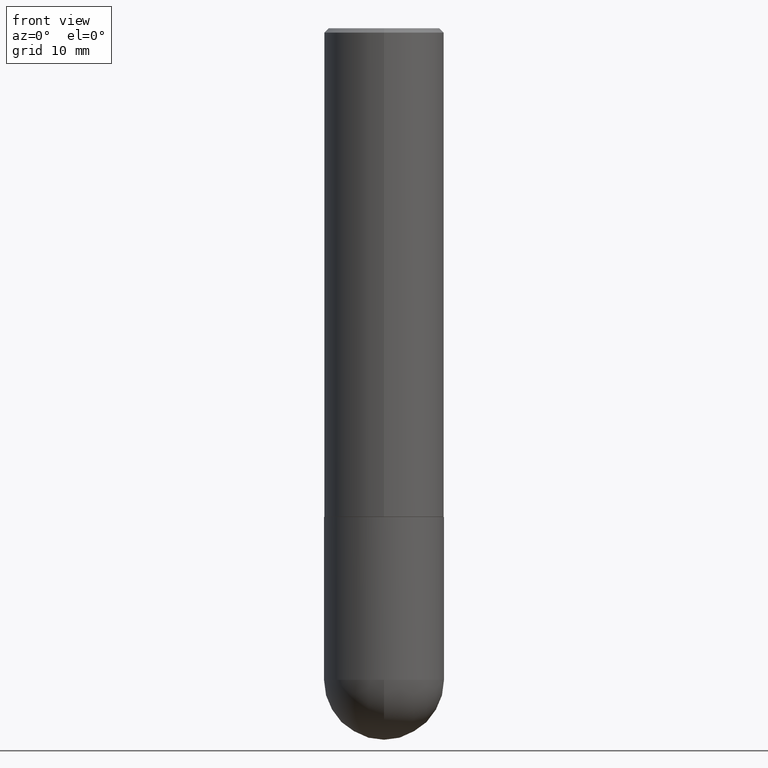
[diagram: clean part render]
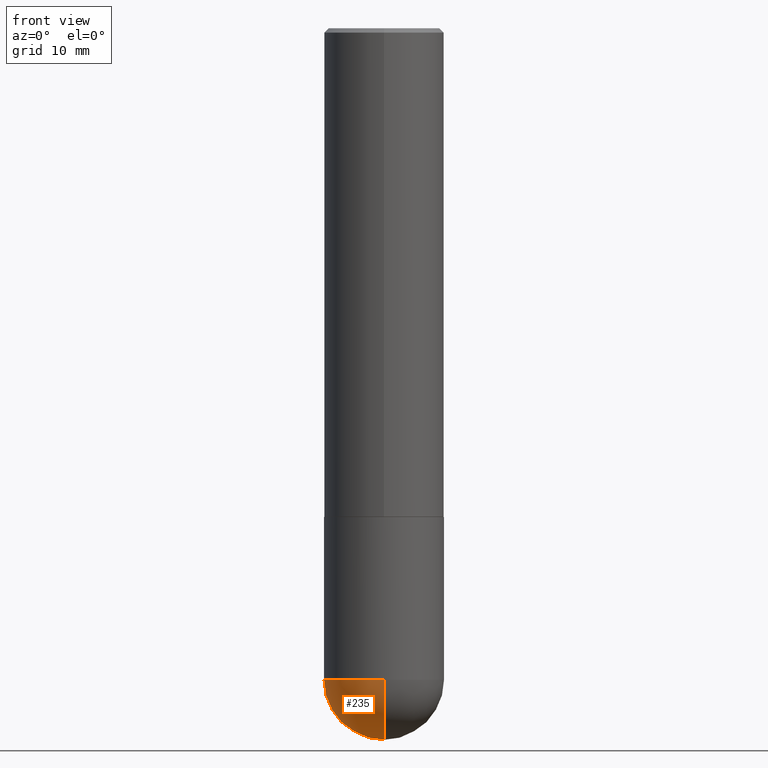
[diagram: same view with one face highlighted and labeled with its STEP entity id]
A machine part, front view. The second image highlights one B-rep face of the part: STEP entity #235.
In plain terms, the highlighted spherical surface has radius 7.0002 mm.
Its self-contained STEP definition (entity closure, byte-faithful):
#11 = FACE_OUTER_BOUND ( 'NONE', #186, .T. ) ;
#14 = DIRECTION ( 'NONE',  ( 1.000000000000000000, -6.982962677686265922E-15, 4.883557194083112340E-29 ) ) ;
#35 = ORIENTED_EDGE ( 'NONE', *, *, #64, .T. ) ;
#40 = CARTESIAN_POINT ( 'NONE',  ( 6.985967437072660867E-29, -1.092104368209262610E-14, -2.992100000000000204 ) ) ;
#45 = CARTESIAN_POINT ( 'NONE',  ( 7.671722831522178326E-29, -1.186642030618554829E-14, -3.267700000000000049 ) ) ;
#48 = CIRCLE ( 'NONE', #262, 0.2756000000000000671 ) ;
#61 = EDGE_CURVE ( 'NONE', #319, #368, #157, .T. ) ;
#64 = EDGE_CURVE ( 'NONE', #407, #368, #299, .T. ) ;
#74 = SPHERICAL_SURFACE ( 'NONE', #168, 0.2756000000000003447 ) ;
#84 = ORIENTED_EDGE ( 'NONE', *, *, #340, .F. ) ;
#104 = CARTESIAN_POINT ( 'NONE',  ( 6.985967437072660867E-29, -1.092104368209262610E-14, -2.992100000000000204 ) ) ;
#106 = DIRECTION ( 'NONE',  ( -2.445468806185136597E-29, 3.491481338843145583E-15, 1.000000000000000000 ) ) ;
#110 = CARTESIAN_POINT ( 'NONE',  ( 6.985967437072660867E-29, -1.092104368209262610E-14, -2.992100000000000204 ) ) ;
#112 = DIRECTION ( 'NONE',  ( 6.982962677686265922E-15, 1.000000000000000000, -3.964946289788475374E-15 ) ) ;
#119 = AXIS2_PLACEMENT_3D ( 'NONE', #110, #14, #137 ) ;
#136 = EDGE_CURVE ( 'NONE', #244, #319, #48, .T. ) ;
#137 = DIRECTION ( 'NONE',  ( 6.982962677686265922E-15, 1.000000000000000000, 0.000000000000000000 ) ) ;
#152 = ORIENTED_EDGE ( 'NONE', *, *, #136, .F. ) ;
#157 = CIRCLE ( 'NONE', #233, 0.2756000000000000671 ) ;
#168 = AXIS2_PLACEMENT_3D ( 'NONE', #40, #389, #112 ) ;
#186 = EDGE_LOOP ( 'NONE', ( #84, #35, #371, #152 ) ) ;
#190 = DIRECTION ( 'NONE',  ( -2.445468806185136597E-29, 3.491481338843145583E-15, 1.000000000000000000 ) ) ;
#198 = AXIS2_PLACEMENT_3D ( 'NONE', #104, #253, #412 ) ;
#233 = AXIS2_PLACEMENT_3D ( 'NONE', #252, #190, #348 ) ;
#235 = ADVANCED_FACE ( 'NONE', ( #11 ), #74, .T. ) ;
#244 = VERTEX_POINT ( 'NONE', #358 ) ;
#252 = CARTESIAN_POINT ( 'NONE',  ( 7.317087214986547114E-29, -1.044686131395257581E-14, -2.992100000000000204 ) ) ;
#253 = DIRECTION ( 'NONE',  ( -1.000000000000000000, 7.105427357601001070E-15, -4.926315508542082329E-29 ) ) ;
#262 = AXIS2_PLACEMENT_3D ( 'NONE', #347, #106, #390 ) ;
#266 = CARTESIAN_POINT ( 'NONE',  ( -1.958255779754765592E-15, -0.2756000000000108918, -2.992099999999998872 ) ) ;
#299 = CIRCLE ( 'NONE', #198, 0.2756000000000003447 ) ;
#319 = VERTEX_POINT ( 'NONE', #327 ) ;
#327 = CARTESIAN_POINT ( 'NONE',  ( -0.2756000000000000671, -7.182791513470404062E-15, -2.992100000000000204 ) ) ;
#340 = EDGE_CURVE ( 'NONE', #407, #244, #398, .T. ) ;
#347 = CARTESIAN_POINT ( 'NONE',  ( 7.317087214986547114E-29, -1.044686131395257581E-14, -2.992100000000000204 ) ) ;
#348 = DIRECTION ( 'NONE',  ( 1.000000000000000000, -6.982962677686264344E-15, 0.000000000000000000 ) ) ;
#358 = CARTESIAN_POINT ( 'NONE',  ( 1.924504513970407924E-15, 0.2755999999999895200, -2.992100000000001092 ) ) ;
#368 = VERTEX_POINT ( 'NONE', #266 ) ;
#371 = ORIENTED_EDGE ( 'NONE', *, *, #61, .F. ) ;
#389 = DIRECTION ( 'NONE',  ( -1.000000000000000000, 6.982962677686265922E-15, -4.883557194083112340E-29 ) ) ;
#390 = DIRECTION ( 'NONE',  ( 1.000000000000000000, -6.982962677686264344E-15, 0.000000000000000000 ) ) ;
#398 = CIRCLE ( 'NONE', #119, 0.2756000000000003447 ) ;
#407 = VERTEX_POINT ( 'NONE', #45 ) ;
#412 = DIRECTION ( 'NONE',  ( -7.105427357601001859E-15, -1.000000000000000000, 0.000000000000000000 ) ) ;